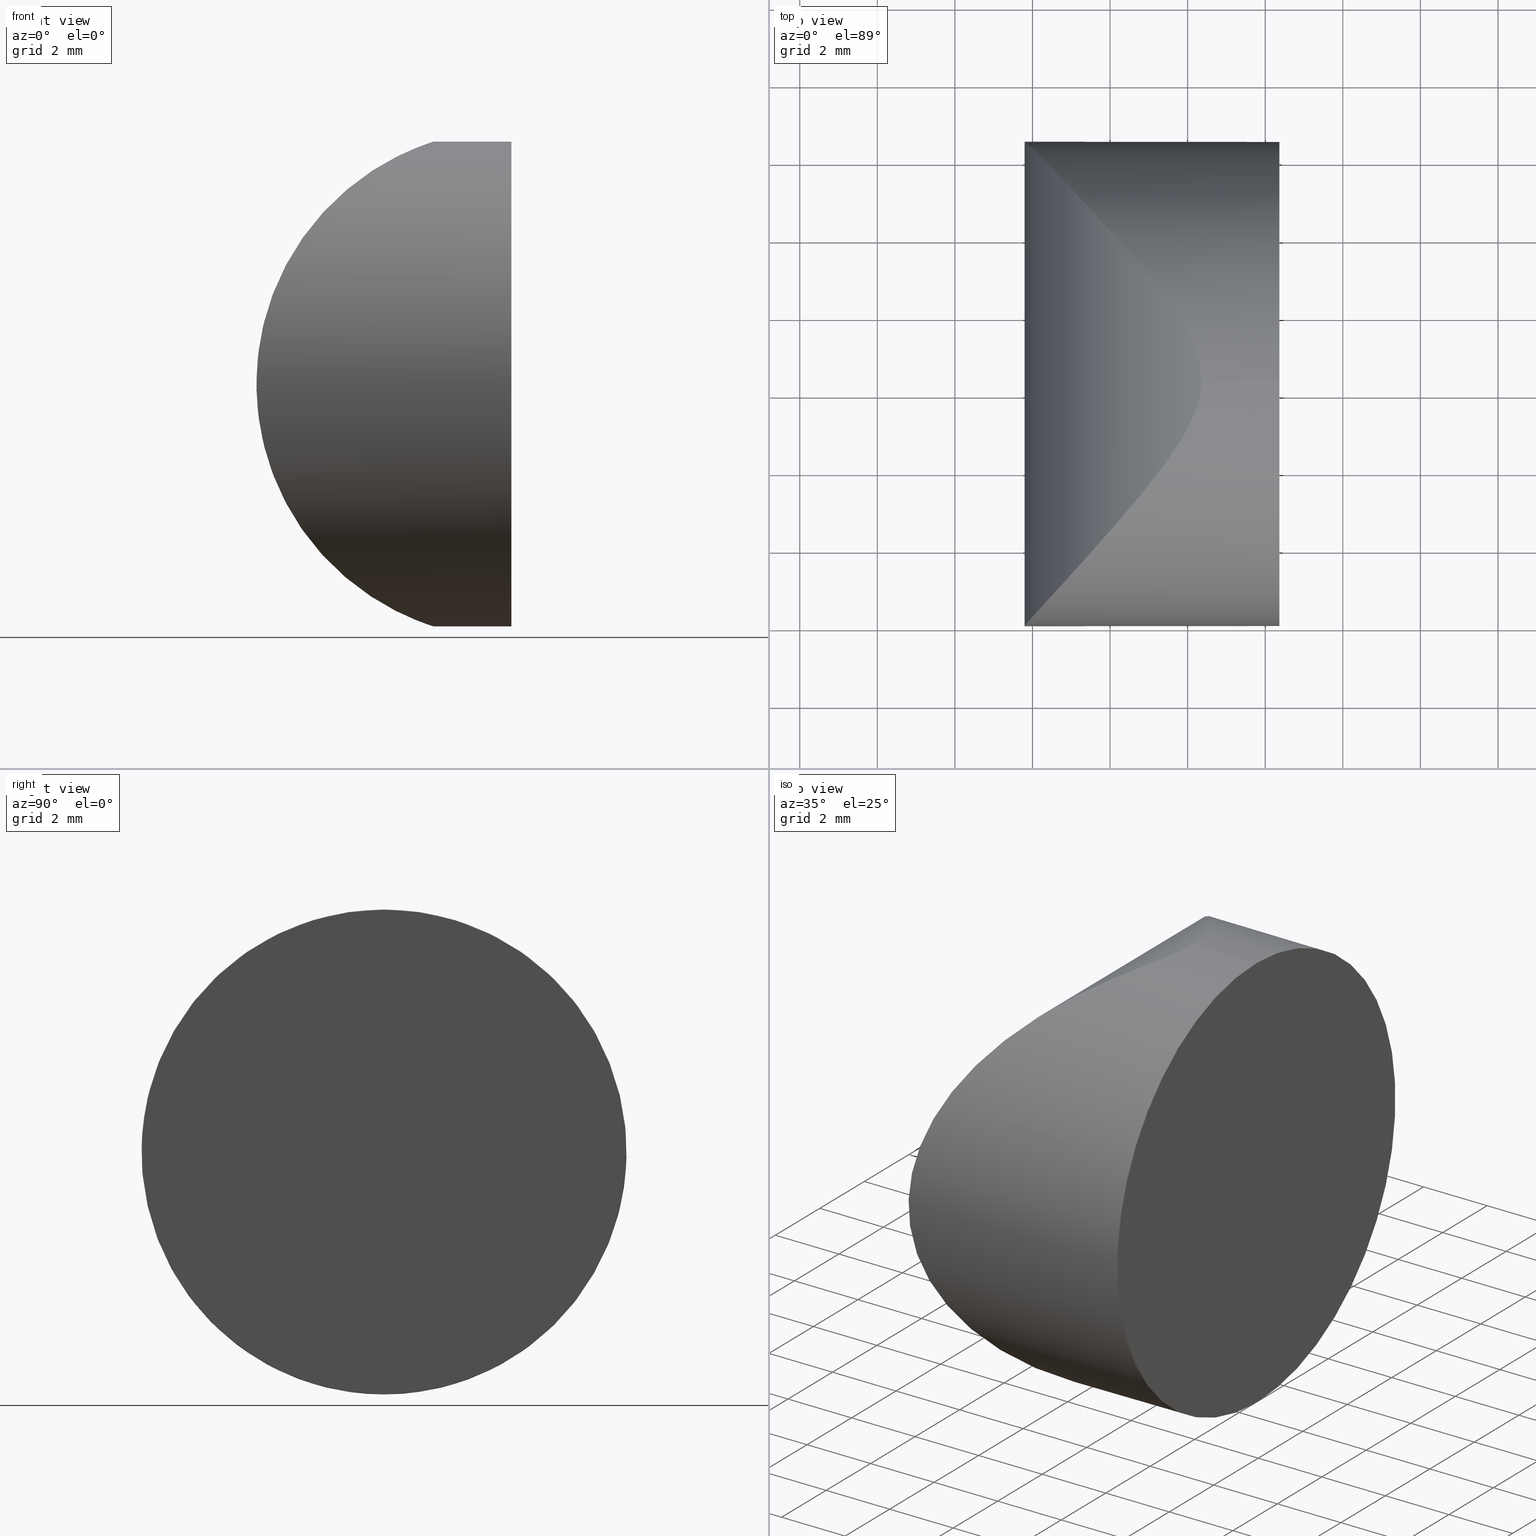
[diagram: canonical four-view strip — front | top / right | iso, engineering-drawing reading convention]
A machine part, canonical four-view strip (front | top / right | iso — engineering-drawing reading convention). The complete STEP part file that produces these views, byte-faithful:
ISO-10303-21;
HEADER;
FILE_DESCRIPTION (( 'STEP AP214' ),
    '1' );
FILE_NAME ('155017.STEP',
    '2019-06-17T02:43:54',
    ( 'user' ),
    ( '΢���й�' ),
    'SwSTEP 2.0',
    'SolidWorks 2016',
    '' );
FILE_SCHEMA (( 'AUTOMOTIVE_DESIGN' ));
ENDSEC;

DATA;
#1 = CARTESIAN_POINT ( 'NONE',  ( -0.8570534961346265600, 11.06705681792739800, 4.002434056211535900 ) ) ;
#2 = SURFACE_SIDE_STYLE ('',( #106 ) ) ;
#3 = CARTESIAN_POINT ( 'NONE',  ( -2.017443642755138100, 12.30307947686166000, 1.572709918499453500 ) ) ;
#4 = CARTESIAN_POINT ( 'NONE',  ( 4.355204334851265500, 12.50000000000000000, 4.286263797015675000E-017 ) ) ;
#5 = CARTESIAN_POINT ( 'NONE',  ( 2.319627067086004900, 5.786310721781303500, -6.236631612805867400 ) ) ;
#6 = CARTESIAN_POINT ( 'NONE',  ( -0.1144007312154443600, 2.248634901616065400, -4.804907861922801600 ) ) ;
#7 =( NAMED_UNIT ( * ) SI_UNIT ( $, .STERADIAN. ) SOLID_ANGLE_UNIT ( ) );
#8 = SHAPE_DEFINITION_REPRESENTATION ( #167, #55 ) ;
#9 = CARTESIAN_POINT ( 'NONE',  ( 2.362442432365132300, 6.483033246805801400, 6.249999999999997300 ) ) ;
#10 = FILL_AREA_STYLE_COLOUR ( '', #58 ) ;
#11 = CARTESIAN_POINT ( 'NONE',  ( 2.362442432365131900, 6.250000000000000900, 6.249999999999995600 ) ) ;
#12 =( NAMED_UNIT ( * ) SI_UNIT ( $, .STERADIAN. ) SOLID_ANGLE_UNIT ( ) );
#13 = FACE_OUTER_BOUND ( 'NONE', #228, .T. ) ;
#14 = APPLICATION_PROTOCOL_DEFINITION ( 'draft international standard', 'automotive_design', 1998, #203 ) ;
#15 = EDGE_CURVE ( 'NONE', #92, #153, #200, .T. ) ;
#16 = CARTESIAN_POINT ( 'NONE',  ( -1.833170492838737100, 0.3912134470349588600, -2.187690880215356100 ) ) ;
#17 = EDGE_LOOP ( 'NONE', ( #81, #161 ) ) ;
#18 = CARTESIAN_POINT ( 'NONE',  ( 1.495385379055422600, 4.194413569919328600, 5.905439969487813900 ) ) ;
#19 = CARTESIAN_POINT ( 'NONE',  ( -2.202462430446935100, 0.002448966048315864200, 0.4948982487009596600 ) ) ;
#20 = EDGE_CURVE ( 'NONE', #128, #92, #196, .T. ) ;
#21 = ORIENTED_EDGE ( 'NONE', *, *, #20, .T. ) ;
#22 = AXIS2_PLACEMENT_3D ( 'NONE', #174, #130, #23 ) ;
#23 = DIRECTION ( 'NONE',  ( 1.000000000000000000, 0.0000000000000000000, 0.0000000000000000000 ) ) ;
#24 = CARTESIAN_POINT ( 'NONE',  ( 1.488558866229561000, 4.177652774136052300, -5.908260404778598500 ) ) ;
#25 = ORIENTED_EDGE ( 'NONE', *, *, #59, .F. ) ;
#26 = DIRECTION ( 'NONE',  ( 1.000000000000000000, -0.0000000000000000000, -2.775557561562888400E-016 ) ) ;
#27 =( NAMED_UNIT ( * ) SI_UNIT ( $, .STERADIAN. ) SOLID_ANGLE_UNIT ( ) );
#28 = DIRECTION ( 'NONE',  ( 1.000000000000000000, 0.0000000000000000000, -2.497546408665960700E-016 ) ) ;
#29 = CARTESIAN_POINT ( 'NONE',  ( -1.296399810475934400, 11.53933210395666900, 3.353577292312808700 ) ) ;
#30 = CARTESIAN_POINT ( 'NONE',  ( -1.959512915088014200, 12.24208299927451000, 1.790512509960710000 ) ) ;
#31 = PRODUCT ( '155017', '155017', '', ( #53 ) ) ;
#32 = CARTESIAN_POINT ( 'NONE',  ( -2.194583641667756900, 0.01071508459926045900, -0.4310857836119965600 ) ) ;
#33 = CARTESIAN_POINT ( 'NONE',  ( 0.6976710539728181400, 3.178951094025597600, 5.455980261426013600 ) ) ;
#34 = CYLINDRICAL_SURFACE ( 'NONE', #199, 6.560000000000006700 ) ;
#35 = ADVANCED_FACE ( 'NONE', ( #132 ), #34, .T. ) ;
#36 = DIRECTION ( 'NONE',  ( 1.000000000000000000, -0.0000000000000000000, -2.775557561562888400E-016 ) ) ;
#37 = CIRCLE ( 'NONE', #69, 6.250000000000000000 ) ;
#38 = COLOUR_RGB ( '',1.000000000000000000, 1.000000000000000000, 1.000000000000000000 ) ;
#39 = CARTESIAN_POINT ( 'NONE',  ( -0.6180746996411926600, 10.80810910934504000, 4.293417732653350200 ) ) ;
#40 = CARTESIAN_POINT ( 'NONE',  ( -2.023148698934082600, 0.1909151559939364400, -1.549502107241501800 ) ) ;
#41 = CARTESIAN_POINT ( 'NONE',  ( -0.8559849957584579900, 11.06590551525902200, -4.003935726493807600 ) ) ;
#42 = CARTESIAN_POINT ( 'NONE',  ( -0.8655434103603801800, 1.423760393034194900, -3.991497675698401100 ) ) ;
#43 = CARTESIAN_POINT ( 'NONE',  ( 0.6905483043217058900, 9.329502391267158900, 5.451200811811046900 ) ) ;
#44 = CARTESIAN_POINT ( 'NONE',  ( 2.178534936485370600, 5.350376410116520100, -6.188801096909612600 ) ) ;
#45 = CARTESIAN_POINT ( 'NONE',  ( 1.364925277710291200, 4.017810281870825200, 5.840754369958491800 ) ) ;
#46 = CYLINDRICAL_SURFACE ( 'NONE', #108, 6.250000000000000000 ) ;
#47 = CARTESIAN_POINT ( 'NONE',  ( 2.362442432365166500, 6.250000000000000000, -6.250000000000005300 ) ) ;
#48 = CARTESIAN_POINT ( 'NONE',  ( 0.2892807954182749500, 9.794970665244788300, 5.150707650379830600 ) ) ;
#49 = CARTESIAN_POINT ( 'NONE',  ( 1.865646142245464200, 7.751414740517183200, -6.070356212989890900 ) ) ;
#50 = EDGE_CURVE ( 'NONE', #176, #153, #63, .T. ) ;
#51 = CARTESIAN_POINT ( 'NONE',  ( 0.9684632997284665600, 3.502833599585223100, 5.626180494800683700 ) ) ;
#52 = CARTESIAN_POINT ( 'NONE',  ( 1.747206281154425600, 4.562242624163924500, 6.020891283279159900 ) ) ;
#53 = PRODUCT_CONTEXT ( 'NONE', #120, 'mechanical' ) ;
#54 = CARTESIAN_POINT ( 'NONE',  ( 2.362442432365166500, 6.250000000000000000, -6.250000000000005300 ) ) ;
#55 = ADVANCED_BREP_SHAPE_REPRESENTATION ( '155017', ( #224, #22 ), #84 ) ;
#56 = CARTESIAN_POINT ( 'NONE',  ( -8.334795665148732300, 6.250000000000000900, 6.249999999999997300 ) ) ;
#57 = VECTOR ( 'NONE', #26, 1000.000000000000000 ) ;
#58 = COLOUR_RGB ( '',1.000000000000000000, 1.000000000000000000, 1.000000000000000000 ) ;
#59 = EDGE_CURVE ( 'NONE', #153, #176, #37, .T. ) ;
#60 = CARTESIAN_POINT ( 'NONE',  ( -0.1122970837616390200, 10.25016144166539300, -4.817379741389349800 ) ) ;
#61 = ORIENTED_EDGE ( 'NONE', *, *, #59, .T. ) ;
#62 = CARTESIAN_POINT ( 'NONE',  ( -0.6089611522529255700, 1.701849056664383100, 4.303710474567465900 ) ) ;
#63 = CIRCLE ( 'NONE', #64, 6.250000000000000000 ) ;
#64 = AXIS2_PLACEMENT_3D ( 'NONE', #147, #28, #138 ) ;
#65 =( LENGTH_UNIT ( ) NAMED_UNIT ( * ) SI_UNIT ( .MILLI., .METRE. ) );
#66 = CARTESIAN_POINT ( 'NONE',  ( 1.361197350329256700, 8.487184781077054700, -5.838856941532104500 ) ) ;
#67 = ORIENTED_EDGE ( 'NONE', *, *, #15, .F. ) ;
#68 = ORIENTED_EDGE ( 'NONE', *, *, #15, .T. ) ;
#69 = AXIS2_PLACEMENT_3D ( 'NONE', #183, #227, #72 ) ;
#70 = ADVANCED_FACE ( 'NONE', ( #102 ), #222, .T. ) ;
#71 = CARTESIAN_POINT ( 'NONE',  ( -1.490228738360246800, 11.74539102438613200, -2.984374463293609600 ) ) ;
#72 = DIRECTION ( 'NONE',  ( -2.775557561562891400E-016, 0.0000000000000000000, -1.000000000000000000 ) ) ;
#73 = CARTESIAN_POINT ( 'NONE',  ( 0.1621798472552082600, 2.557406597561370500, 5.056067242454711100 ) ) ;
#74 = EDGE_LOOP ( 'NONE', ( #181, #87, #25, #67 ) ) ;
#75 = DIRECTION ( 'NONE',  ( -2.775557561562891400E-016, 0.0000000000000000000, -1.000000000000000000 ) ) ;
#76 = PRODUCT_DEFINITION ( 'δ֪', '', #221, #198 ) ;
#77 = CARTESIAN_POINT ( 'NONE',  ( 0.6920855064259612300, 9.327701504692445400, -5.452300262372169500 ) ) ;
#78 =( LENGTH_UNIT ( ) NAMED_UNIT ( * ) SI_UNIT ( .MILLI., .METRE. ) );
#79 = ORIENTED_EDGE ( 'NONE', *, *, #50, .F. ) ;
#80 = CARTESIAN_POINT ( 'NONE',  ( 2.362442432365166900, 6.016361209189349200, -6.250000000000006200 ) ) ;
#81 = ORIENTED_EDGE ( 'NONE', *, *, #213, .F. ) ;
#82 = CARTESIAN_POINT ( 'NONE',  ( -0.1048359523380235200, 2.258171173088733100, 4.824199774978914100 ) ) ;
#83 = CARTESIAN_POINT ( 'NONE',  ( -0.2376537007453859700, 10.38844578429965900, 4.687492945098847000 ) ) ;
#84 =( GEOMETRIC_REPRESENTATION_CONTEXT ( 3 ) GLOBAL_UNCERTAINTY_ASSIGNED_CONTEXT ( ( #131 ) ) GLOBAL_UNIT_ASSIGNED_CONTEXT ( ( #118, #121, #27 ) ) REPRESENTATION_CONTEXT ( 'NONE', 'WORKASPACE' ) );
#85 = CARTESIAN_POINT ( 'NONE',  ( -2.011118853650918600, 0.2035790600683125800, 1.597899150292361800 ) ) ;
#86 = CARTESIAN_POINT ( 'NONE',  ( -1.581840811439068100, 11.84269768809035900, -2.798135069488787400 ) ) ;
#87 = ORIENTED_EDGE ( 'NONE', *, *, #163, .T. ) ;
#88 = CARTESIAN_POINT ( 'NONE',  ( -1.825993724121326900, 12.10120621476977500, 2.207799708026061400 ) ) ;
#89 = DIRECTION ( 'NONE',  ( 1.000000000000000000, -0.0000000000000000000, -2.775557561562888400E-016 ) ) ;
#90 = CARTESIAN_POINT ( 'NONE',  ( 2.362442432365131900, 6.250000000000000900, 6.249999999999995600 ) ) ;
#91 = CARTESIAN_POINT ( 'NONE',  ( 2.362442432365166900, 6.483637834988162000, -6.250000000000005300 ) ) ;
#92 = VERTEX_POINT ( 'NONE', #158 ) ;
#93 = CARTESIAN_POINT ( 'NONE',  ( -0.8475258770533343800, 1.443246964321510500, 4.014774955688652700 ) ) ;
#94 = FACE_OUTER_BOUND ( 'NONE', #74, .T. ) ;
#95 = STYLED_ITEM ( 'NONE', ( #112 ), #55 ) ;
#96 = CARTESIAN_POINT ( 'NONE',  ( -1.284000059572238300, 0.9745029103438718200, 3.357778940349669400 ) ) ;
#97 = CARTESIAN_POINT ( 'NONE',  ( -1.506885421993599400, 0.7367046235562039200, -2.974834531755290400 ) ) ;
#98 = APPLICATION_PROTOCOL_DEFINITION ( 'draft international standard', 'automotive_design', 1998, #120 ) ;
#99 = CARTESIAN_POINT ( 'NONE',  ( -1.965805144998063100, 0.2512869955663164000, -1.768279828256724900 ) ) ;
#100 = CARTESIAN_POINT ( 'NONE',  ( -2.155582006898149900, 12.44839909112990600, -0.9183768296814809300 ) ) ;
#101 = CARTESIAN_POINT ( 'NONE',  ( -1.741749644686772000, 0.4878286782012168400, 2.429999012063694100 ) ) ;
#102 = FACE_OUTER_BOUND ( 'NONE', #117, .T. ) ;
#103 =( GEOMETRIC_REPRESENTATION_CONTEXT ( 3 ) GLOBAL_UNCERTAINTY_ASSIGNED_CONTEXT ( ( #229 ) ) GLOBAL_UNIT_ASSIGNED_CONTEXT ( ( #65, #216, #12 ) ) REPRESENTATION_CONTEXT ( 'NONE', 'WORKASPACE' ) );
#104 = CARTESIAN_POINT ( 'NONE',  ( 0.9635937791665623000, 9.003178862096831400, -5.623298913159842100 ) ) ;
#105 = CARTESIAN_POINT ( 'NONE',  ( -1.573758609897741900, 0.6658821544166498900, 2.815162770965192100 ) ) ;
#106 = SURFACE_STYLE_FILL_AREA ( #115 ) ;
#107 = CARTESIAN_POINT ( 'NONE',  ( 4.365204334851267900, 6.250000000000000900, 6.249999999999994700 ) ) ;
#108 = AXIS2_PLACEMENT_3D ( 'NONE', #205, #89, #75 ) ;
#109 = CARTESIAN_POINT ( 'NONE',  ( -1.750197085879443600, 12.02110842223047100, 2.408815328898546300 ) ) ;
#110 = CARTESIAN_POINT ( 'NONE',  ( -1.817931970794044400, 0.4073099362851143600, 2.230189133182898200 ) ) ;
#111 = CYLINDRICAL_SURFACE ( 'NONE', #129, 6.250000000000000000 ) ;
#112 = PRESENTATION_STYLE_ASSIGNMENT (( #149 ) ) ;
#113 = CARTESIAN_POINT ( 'NONE',  ( 0.1562651543297791100, 9.946571719777725900, 5.043134333950289000 ) ) ;
#114 = B_SPLINE_CURVE_WITH_KNOTS ( 'NONE', 3,
 ( #47, #91, #191, #135, #127, #49, #194, #171, #66, #104, #77, #133, #60, #170, #41, #157, #204, #71, #86, #197, #180, #123, #125, #100, #145, #184, #137, #3, #30, #88, #109, #152, #29, #1, #39, #83, #219, #113, #48, #43, #186, #214, #151, #201, #190, #230, #9, #90 ),
 .UNSPECIFIED., .F., .F.,
 ( 4, 2, 2, 2, 2, 2, 2, 2, 2, 2, 2, 2, 2, 2, 2, 2, 2, 2, 2, 2, 2, 2, 2, 4 ),
 ( -0.01096749604021916500, -0.01028222172115069100, -0.009596947402082214500, -0.008911673083013743600, -0.008226398763945271000, -0.006855850125808324800, -0.005485301487671380400, -0.004114752849534436000, -0.003429478530465962500, -0.002744204211397489900, -0.002058929892329019000, -0.001373655573260546300, -3.106935123601065100E-006, 0.001367441703013344200, 0.002052716022081816800, 0.002737990341150287700, 0.004108538979287234800, 0.005479087617424178300, 0.006164361936492654400, 0.006849636255561127000, 0.008220184893698079300, 0.009590733531835028000, 0.01027600785090350400, 0.01096128216997198400 ),
 .UNSPECIFIED. ) ;
#115 = FILL_AREA_STYLE ('',( #169 ) ) ;
#116 = PRESENTATION_LAYER_ASSIGNMENT (  '', '', ( #165 ) ) ;
#117 = EDGE_LOOP ( 'NONE', ( #61, #223 ) ) ;
#118 =( LENGTH_UNIT ( ) NAMED_UNIT ( * ) SI_UNIT ( .MILLI., .METRE. ) );
#119 = SURFACE_STYLE_USAGE ( .BOTH. , #136 ) ;
#120 = APPLICATION_CONTEXT ( 'automotive_design' ) ;
#121 =( NAMED_UNIT ( * ) PLANE_ANGLE_UNIT ( ) SI_UNIT ( $, .RADIAN. ) );
#122 = CARTESIAN_POINT ( 'NONE',  ( -2.148864725033973900, 0.05872645944709341300, -0.8846712126146432100 ) ) ;
#123 = CARTESIAN_POINT ( 'NONE',  ( -1.959018990274069600, 12.24156272020370800, -1.792298942443612900 ) ) ;
#124 = DIRECTION ( 'NONE',  ( -2.775557561562888400E-016, 0.0000000000000000000, -1.000000000000000000 ) ) ;
#125 = CARTESIAN_POINT ( 'NONE',  ( -2.016854672622802300, 12.30245934484352200, -1.574961174940608500 ) ) ;
#126 = CARTESIAN_POINT ( 'NONE',  ( 2.180243791424413900, 5.354270871820964400, 6.189400017175707100 ) ) ;
#127 = CARTESIAN_POINT ( 'NONE',  ( 2.082372310380315100, 7.355491583021931800, -6.154783435304195500 ) ) ;
#128 = VERTEX_POINT ( 'NONE', #11 ) ;
#129 = AXIS2_PLACEMENT_3D ( 'NONE', #166, #36, #141 ) ;
#130 = DIRECTION ( 'NONE',  ( 0.0000000000000000000, 0.0000000000000000000, 1.000000000000000000 ) ) ;
#131 = UNCERTAINTY_MEASURE_WITH_UNIT (LENGTH_MEASURE( 1.000000000000000100E-005 ), #118, 'distance_accuracy_value', 'NONE');
#132 = FACE_OUTER_BOUND ( 'NONE', #17, .T. ) ;
#133 = CARTESIAN_POINT ( 'NONE',  ( 0.1552823889947876100, 9.950425833888449000, -5.050413186160191100 ) ) ;
#134 = CARTESIAN_POINT ( 'NONE',  ( -0.6263294364482094900, 1.682887691090609200, -4.283936709974952400 ) ) ;
#135 = CARTESIAN_POINT ( 'NONE',  ( 2.179364435002066900, 7.147967215309873400, -6.189095182850383700 ) ) ;
#136 = SURFACE_SIDE_STYLE ('',( #206 ) ) ;
#137 = CARTESIAN_POINT ( 'NONE',  ( -2.156424214787954000, 12.44928399053698900, 0.9133063935357812500 ) ) ;
#138 = DIRECTION ( 'NONE',  ( -2.775557561562891400E-016, 0.0000000000000000000, -1.000000000000000000 ) ) ;
#139 = CARTESIAN_POINT ( 'NONE',  ( -1.757730820937952100, 0.4709227711911955800, -2.389698303818627700 ) ) ;
#140 = CARTESIAN_POINT ( 'NONE',  ( 0.9567304066771213900, 3.488371527113751600, -5.619214554807860500 ) ) ;
#141 = DIRECTION ( 'NONE',  ( -2.775557561562891400E-016, 0.0000000000000000000, -1.000000000000000000 ) ) ;
#142 = CARTESIAN_POINT ( 'NONE',  ( 2.080453414258576200, 5.140482751057148500, -6.154090899227970400 ) ) ;
#143 = CARTESIAN_POINT ( 'NONE',  ( 4.365204334851264400, 12.50000000000000000, -6.250000000000012400 ) ) ;
#144 = CARTESIAN_POINT ( 'NONE',  ( -0.2453815832735543900, 2.102980007047592800, -4.679931337356213900 ) ) ;
#145 = CARTESIAN_POINT ( 'NONE',  ( -2.204570982756724400, 12.49976417335856000, -0.4678947705367332300 ) ) ;
#146 = CARTESIAN_POINT ( 'NONE',  ( 2.083640275601486900, 5.147153445897932200, 6.155242971895414300 ) ) ;
#147 = CARTESIAN_POINT ( 'NONE',  ( 4.365204334851266100, 6.250000000000000000, -6.415758017866774500E-015 ) ) ;
#148 =( GEOMETRIC_REPRESENTATION_CONTEXT ( 3 ) GLOBAL_UNCERTAINTY_ASSIGNED_CONTEXT ( ( #173 ) ) GLOBAL_UNIT_ASSIGNED_CONTEXT ( ( #78, #175, #7 ) ) REPRESENTATION_CONTEXT ( 'NONE', 'WORKASPACE' ) );
#149 = SURFACE_STYLE_USAGE ( .BOTH. , #2 ) ;
#150 = CARTESIAN_POINT ( 'NONE',  ( -8.334795665148735800, 6.250000000000000000, -6.250000000000002700 ) ) ;
#151 = CARTESIAN_POINT ( 'NONE',  ( 1.755521414315740900, 7.952200625805169000, 6.027414855975990800 ) ) ;
#152 = CARTESIAN_POINT ( 'NONE',  ( -1.498476470877975600, 11.75435669509879200, 2.991135605856987100 ) ) ;
#153 = VERTEX_POINT ( 'NONE', #172 ) ;
#154 = FILL_AREA_STYLE ('',( #10 ) ) ;
#155 = CARTESIAN_POINT ( 'NONE',  ( -2.151870349434560100, 0.05549744399044658600, 0.9437105451296413600 ) ) ;
#156 = MECHANICAL_DESIGN_GEOMETRIC_PRESENTATION_REPRESENTATION (  '', ( #95 ), #103 ) ;
#157 = CARTESIAN_POINT ( 'NONE',  ( -1.186496826001922600, 11.42119325487956500, -3.515927634229269100 ) ) ;
#158 = CARTESIAN_POINT ( 'NONE',  ( 2.362442432365166500, 6.250000000000000000, -6.250000000000005300 ) ) ;
#159 = CARTESIAN_POINT ( 'NONE',  ( -1.481940063743406600, 0.7634256524740248300, 3.000508437631187700 ) ) ;
#160 = CARTESIAN_POINT ( 'NONE',  ( -1.305014973811845500, 0.9514658303568848100, -3.339188238490833800 ) ) ;
#161 = ORIENTED_EDGE ( 'NONE', *, *, #20, .F. ) ;
#162 = LINE ( 'NONE', #56, #57 ) ;
#163 = EDGE_CURVE ( 'NONE', #128, #176, #162, .T. ) ;
#164 = DIRECTION ( 'NONE',  ( 0.0000000000000000000, 0.0000000000000000000, -1.000000000000000000 ) ) ;
#165 = STYLED_ITEM ( 'NONE', ( #187 ), #224 ) ;
#166 = CARTESIAN_POINT ( 'NONE',  ( -8.334795665148734000, 6.250000000000000000, -2.890799914681906000E-015 ) ) ;
#167 = PRODUCT_DEFINITION_SHAPE ( 'NONE', 'NONE',  #76 ) ;
#168 = CARTESIAN_POINT ( 'NONE',  ( 1.867735791822030300, 4.752079107836646400, 6.071204128159690700 ) ) ;
#169 = FILL_AREA_STYLE_COLOUR ( '', #38 ) ;
#170 = CARTESIAN_POINT ( 'NONE',  ( -0.6171614314415900800, 10.80709819379387300, -4.294332914930521400 ) ) ;
#171 = CARTESIAN_POINT ( 'NONE',  ( 1.492049458122099300, 8.310232679871306900, -5.903834396371326700 ) ) ;
#172 = CARTESIAN_POINT ( 'NONE',  ( 4.365204334851264400, 6.250000000000000000, -6.250000000000006200 ) ) ;
#173 = UNCERTAINTY_MEASURE_WITH_UNIT (LENGTH_MEASURE( 1.000000000000000100E-005 ), #78, 'distance_accuracy_value', 'NONE');
#174 = CARTESIAN_POINT ( 'NONE',  ( 0.0000000000000000000, 0.0000000000000000000, 0.0000000000000000000 ) ) ;
#175 =( NAMED_UNIT ( * ) PLANE_ANGLE_UNIT ( ) SI_UNIT ( $, .RADIAN. ) );
#176 = VERTEX_POINT ( 'NONE', #107 ) ;
#177 = PRESENTATION_LAYER_ASSIGNMENT (  '', '', ( #95 ) ) ;
#178 = ADVANCED_FACE ( 'NONE', ( #94 ), #46, .T. ) ;
#179 = CARTESIAN_POINT ( 'NONE',  ( -2.205845507232412100, -0.001101915629733534000, -0.1995103756945707200 ) ) ;
#180 = CARTESIAN_POINT ( 'NONE',  ( -1.825132007016407400, 12.10029614029822700, -2.210247587948249900 ) ) ;
#181 = ORIENTED_EDGE ( 'NONE', *, *, #213, .T. ) ;
#182 = PRODUCT_RELATED_PRODUCT_CATEGORY ( 'part', '', ( #31 ) ) ;
#183 = CARTESIAN_POINT ( 'NONE',  ( 4.365204334851266100, 6.250000000000000000, -6.415758017866774500E-015 ) ) ;
#184 = CARTESIAN_POINT ( 'NONE',  ( -2.205018824595747600, 12.50023422815834600, 0.4615732141813062000 ) ) ;
#185 = CARTESIAN_POINT ( 'NONE',  ( -1.952667935873827300, 0.2651300835908750900, 1.814415287099616600 ) ) ;
#186 = CARTESIAN_POINT ( 'NONE',  ( 0.9616248557962764300, 9.005591930310627500, 5.622118990645439900 ) ) ;
#187 = PRESENTATION_STYLE_ASSIGNMENT (( #119 ) ) ;
#188 = DIRECTION ( 'NONE',  ( -0.0000000000000000000, -1.000000000000000000, -0.0000000000000000000 ) ) ;
#189 = MECHANICAL_DESIGN_GEOMETRIC_PRESENTATION_REPRESENTATION (  '', ( #165 ), #148 ) ;
#190 = CARTESIAN_POINT ( 'NONE',  ( 2.179407963066949600, 7.147408538276379500, 6.189103932778031900 ) ) ;
#191 = CARTESIAN_POINT ( 'NONE',  ( 2.320842385624584100, 6.709014586322674700, -6.237030536376762400 ) ) ;
#192 = CARTESIAN_POINT ( 'NONE',  ( 0.6849419138845356200, 3.163825739291426400, -5.447495895534940400 ) ) ;
#193 = CARTESIAN_POINT ( 'NONE',  ( -2.114415804441303900, 0.09491214766147769400, -1.108313790045305900 ) ) ;
#194 = CARTESIAN_POINT ( 'NONE',  ( 1.744669802574744500, 7.941683596681100400, -6.019802811031855300 ) ) ;
#195 = ADVANCED_FACE ( 'NONE', ( #13 ), #111, .T. ) ;
#196 = B_SPLINE_CURVE_WITH_KNOTS ( 'NONE', 3,
 ( #207, #215, #202, #126, #146, #168, #52, #18, #45, #51, #33, #73, #82, #62, #93, #208, #96, #159, #105, #101, #110, #185, #85, #155, #19, #179, #32, #122, #193, #40, #99, #16, #139, #97, #160, #42, #134, #144, #6, #211, #217, #192, #140, #24, #225, #142, #44, #5, #80, #54 ),
 .UNSPECIFIED., .F., .F.,
 ( 4, 2, 2, 2, 2, 2, 2, 2, 2, 2, 2, 2, 2, 2, 2, 2, 2, 2, 2, 2, 2, 2, 2, 2, 4 ),
 ( 0.01096128216997198400, 0.01164655929252734500, 0.01233183641508270700, 0.01301711353763807000, 0.01370239066019343100, 0.01507294490530415100, 0.01644349915041487200, 0.01781405339552559500, 0.01849933051808095400, 0.01918460764063631100, 0.01986988476319167000, 0.02055516188574703400, 0.02192571613085775300, 0.02261099325341311300, 0.02329627037596847900, 0.02398154749852383900, 0.02466682462107919900, 0.02603737886618992200, 0.02740793311130064100, 0.02809321023385600400, 0.02877848735641136400, 0.03014904160152209100, 0.03151959584663281700, 0.03220487296918817700, 0.03289015009174353600 ),
 .UNSPECIFIED. ) ;
#197 = CARTESIAN_POINT ( 'NONE',  ( -1.749287372914512400, 12.02014569759402100, -2.411067383133763500 ) ) ;
#198 = PRODUCT_DEFINITION_CONTEXT ( 'detailed design', #203, 'design' ) ;
#199 = AXIS2_PLACEMENT_3D ( 'NONE', #4, #188, #164 ) ;
#200 = LINE ( 'NONE', #150, #212 ) ;
#201 = CARTESIAN_POINT ( 'NONE',  ( 2.081738241407697000, 7.356845517147395900, 6.154557027544999700 ) ) ;
#202 = CARTESIAN_POINT ( 'NONE',  ( 2.321058454545243500, 5.792149841137177000, 6.237096798648573200 ) ) ;
#203 = APPLICATION_CONTEXT ( 'automotive_design' ) ;
#204 = CARTESIAN_POINT ( 'NONE',  ( -1.292596490113244300, 11.53468436673170300, -3.343340334468540800 ) ) ;
#205 = CARTESIAN_POINT ( 'NONE',  ( -8.334795665148734000, 6.250000000000000000, -2.890799914681906000E-015 ) ) ;
#206 = SURFACE_STYLE_FILL_AREA ( #154 ) ;
#207 = CARTESIAN_POINT ( 'NONE',  ( 2.362442432365131900, 6.250000000000000900, 6.249999999999995600 ) ) ;
#208 = CARTESIAN_POINT ( 'NONE',  ( -1.177903564193832700, 1.088016244261317900, 3.529393981719416700 ) ) ;
#209 = AXIS2_PLACEMENT_3D ( 'NONE', #143, #226, #124 ) ;
#210 = ORIENTED_EDGE ( 'NONE', *, *, #163, .F. ) ;
#211 = CARTESIAN_POINT ( 'NONE',  ( 0.1493757991094593900, 2.545604384516153600, -5.037411571046850300 ) ) ;
#212 = VECTOR ( 'NONE', #220, 1000.000000000000000 ) ;
#213 = EDGE_CURVE ( 'NONE', #92, #128, #114, .T. ) ;
#214 = CARTESIAN_POINT ( 'NONE',  ( 1.491933662296339900, 8.317661517280578600, 5.909846417744378600 ) ) ;
#215 = CARTESIAN_POINT ( 'NONE',  ( 2.362442432365131900, 6.016965799845106500, 6.249999999999996400 ) ) ;
#216 =( NAMED_UNIT ( * ) PLANE_ANGLE_UNIT ( ) SI_UNIT ( $, .RADIAN. ) );
#217 = CARTESIAN_POINT ( 'NONE',  ( 0.2827004373332334700, 2.697483381112141000, -5.145524409363750000 ) ) ;
#218 = CLOSED_SHELL ( 'NONE', ( #178, #35, #70, #195 ) ) ;
#219 = CARTESIAN_POINT ( 'NONE',  ( -0.1069305255054381900, 10.24301887670876400, 4.811823629350532100 ) ) ;
#220 = DIRECTION ( 'NONE',  ( 1.000000000000000000, -0.0000000000000000000, -2.775557561562888400E-016 ) ) ;
#221 = PRODUCT_DEFINITION_FORMATION_WITH_SPECIFIED_SOURCE ( '�κ�', '', #31, .NOT_KNOWN. ) ;
#222 = PLANE ( 'NONE',  #209 ) ;
#223 = ORIENTED_EDGE ( 'NONE', *, *, #50, .T. ) ;
#224 = MANIFOLD_SOLID_BREP ( '�г�-����8', #218 ) ;
#225 = CARTESIAN_POINT ( 'NONE',  ( 1.753001951747818100, 4.543862742190113700, -6.026362828785015500 ) ) ;
#226 = DIRECTION ( 'NONE',  ( 1.000000000000000000, 0.0000000000000000000, -2.775557561562888400E-016 ) ) ;
#227 = DIRECTION ( 'NONE',  ( 1.000000000000000000, 0.0000000000000000000, -2.497546408665960700E-016 ) ) ;
#228 = EDGE_LOOP ( 'NONE', ( #210, #21, #68, #79 ) ) ;
#229 = UNCERTAINTY_MEASURE_WITH_UNIT (LENGTH_MEASURE( 1.000000000000000100E-005 ), #65, 'distance_accuracy_value', 'NONE');
#230 = CARTESIAN_POINT ( 'NONE',  ( 2.319849978017133600, 6.712514422461876700, 6.236700248073066000 ) ) ;
ENDSEC;
END-ISO-10303-21;
